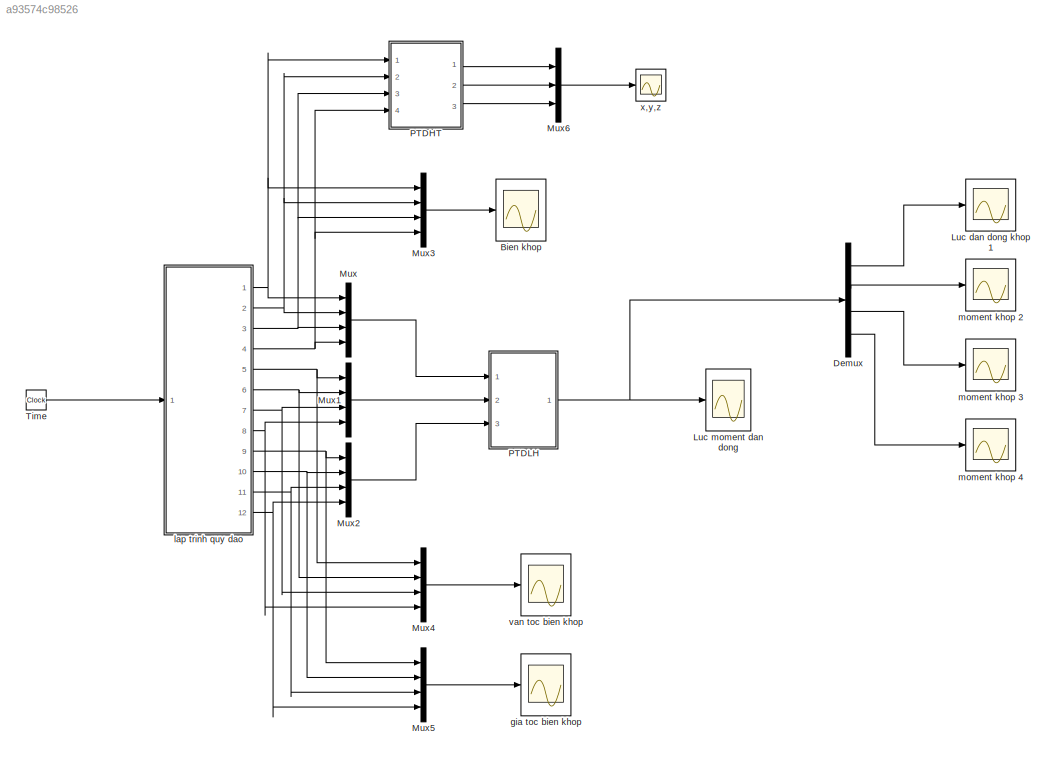
MODEL slx_a93574c98526
KIND model
CONFIG AbsTol = auto
CONFIG EnableMultiTasking = off
CONFIG FixedStep = auto
CONFIG MaxStep = auto
CONFIG MinStep = auto
CONFIG RelTol = 1e-3
CONFIG SampleTimeConstraint = Unconstrained
CONFIG Solver = VariableStepAuto
CONFIG SolverName = VariableStepAuto
CONFIG StartTime = 0.0
CONFIG StopTime = 10.0
BLOCK [Scope] Bien khop
  Floating = off
  NumInputPorts = 1
  Ports = [1]
  ScopeSpecificationString = Simulink.scopes.TimeScopeBlockCfg('CurrentConfiguration', extmgr.ConfigurationSet(extmgr.Configuration('Core','General UI',true,'FigureColor',[0.941176470588235 0.941176470588235 0.941176470588235]),extmgr.Configuration('Core','Source UI',true),extmgr.Configuration('Sources','WiredSimulink',true,'DataLoggingVariableName','ScopeData1'),extmgr.Configuration('Visuals','Time Domain',true,'SerializedDi...<+2045ch>
BLOCK [Demux] Demux
  Ports = [1, 4]
BLOCK [Scope] Luc dan dong khop 1 
  Floating = off
  NumInputPorts = 1
  Ports = [1]
  ScopeSpecificationString = Simulink.scopes.TimeScopeBlockCfg('CurrentConfiguration', extmgr.ConfigurationSet(extmgr.Configuration('Core','General UI',true,'FigureColor',[0.941176470588235 0.941176470588235 0.941176470588235]),extmgr.Configuration('Core','Source UI',true),extmgr.Configuration('Sources','WiredSimulink',true,'DataLoggingVariableName','ScopeData4'),extmgr.Configuration('Visuals','Time Domain',true,'SerializedDi...<+1551ch>
BLOCK [Scope] Luc moment dan dong
  Floating = off
  NumInputPorts = 1
  Ports = [1]
  ScopeSpecificationString = Simulink.scopes.TimeScopeBlockCfg('CurrentConfiguration', extmgr.ConfigurationSet(extmgr.Configuration('Core','General UI',true,'FigureColor',[0.941176470588235 0.941176470588235 0.941176470588235]),extmgr.Configuration('Core','Source UI',true),extmgr.Configuration('Sources','WiredSimulink',true),extmgr.Configuration('Visuals','Time Domain',true,'SerializedDisplays',{struct('MinYLimReal','-41.8188...<+2064ch>
BLOCK [Mux] Mux
  DisplayOption = bar
  Ports = [4, 1]
BLOCK [Mux] Mux1
  DisplayOption = bar
  Ports = [4, 1]
BLOCK [Mux] Mux2
  DisplayOption = bar
  Ports = [4, 1]
BLOCK [Mux] Mux3
  DisplayOption = bar
  Ports = [4, 1]
BLOCK [Mux] Mux4
  DisplayOption = bar
  Ports = [4, 1]
BLOCK [Mux] Mux5
  DisplayOption = bar
  Ports = [4, 1]
BLOCK [Mux] Mux6
  DisplayOption = bar
  Inputs = 3
  Ports = [3, 1]
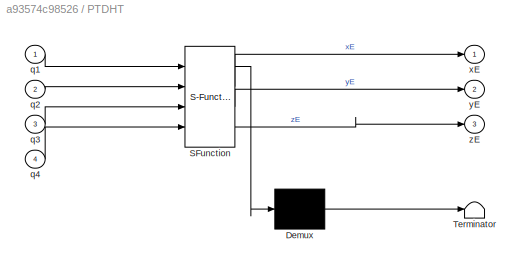
BLOCK [SubSystem] PTDHT
  ErrorFcn = Stateflow.Translate.translate
  PermitHierarchicalResolution = ExplicitOnly
  Ports = [4, 3]
  RequestExecContextInheritance = off
  SFBlockType = MATLAB Function
  TreatAsAtomicUnit = on
BLOCK [Demux] PTDHT/ Demux 
  Outputs = 1
  Ports = [1, 1]
BLOCK [S-Function] PTDHT/ SFunction 
  EnableBusSupport = on
  FunctionName = sf_sfun
  PortCounts = [4 4]
  Ports = [4, 4]
  SFcnIsStateOwnerBlock = off
  SFunctionDeploymentMode = off
  Tag = Stateflow S-Function 3
BLOCK [Terminator] PTDHT/ Terminator 
BLOCK [Inport] PTDHT/q1
BLOCK [Inport] PTDHT/q2
  Port = 2
BLOCK [Inport] PTDHT/q3
  Port = 3
BLOCK [Inport] PTDHT/q4
  Port = 4
BLOCK [Outport] PTDHT/xE
BLOCK [Outport] PTDHT/yE
  Port = 2
BLOCK [Outport] PTDHT/zE
  Port = 3
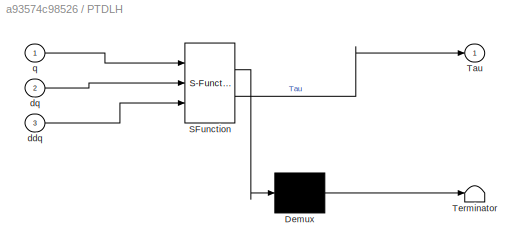
BLOCK [SubSystem] PTDLH
  ErrorFcn = Stateflow.Translate.translate
  PermitHierarchicalResolution = ExplicitOnly
  Ports = [3, 1]
  RequestExecContextInheritance = off
  SFBlockType = MATLAB Function
  TreatAsAtomicUnit = on
BLOCK [Demux] PTDLH/ Demux 
  Outputs = 1
  Ports = [1, 1]
BLOCK [S-Function] PTDLH/ SFunction 
  EnableBusSupport = on
  FunctionName = sf_sfun
  PortCounts = [3 2]
  Ports = [3, 2]
  SFcnIsStateOwnerBlock = off
  SFunctionDeploymentMode = off
  Tag = Stateflow S-Function 1
BLOCK [Terminator] PTDLH/ Terminator 
BLOCK [Outport] PTDLH/Tau
BLOCK [Inport] PTDLH/ddq
  Port = 3
BLOCK [Inport] PTDLH/dq
  Port = 2
BLOCK [Inport] PTDLH/q
BLOCK [Clock] Time 
BLOCK [Scope] gia toc bien khop
  Floating = off
  NumInputPorts = 1
  Ports = [1]
  ScopeSpecificationString = Simulink.scopes.TimeScopeBlockCfg('CurrentConfiguration', extmgr.ConfigurationSet(extmgr.Configuration('Core','General UI',true,'FigureColor',[0.941176470588235 0.941176470588235 0.941176470588235]),extmgr.Configuration('Core','Source UI',true),extmgr.Configuration('Sources','WiredSimulink',true,'DataLoggingVariableName','ScopeData3'),extmgr.Configuration('Visuals','Time Domain',true,'SerializedDi...<+2099ch>
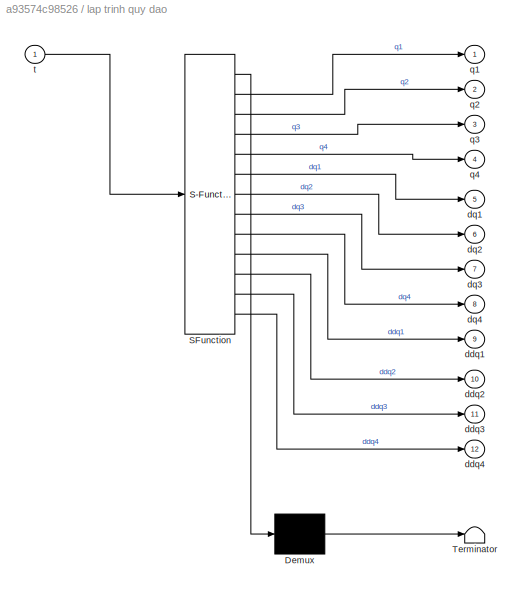
BLOCK [SubSystem] lap trinh quy dao
  ErrorFcn = Stateflow.Translate.translate
  PermitHierarchicalResolution = ExplicitOnly
  Ports = [1, 12]
  RequestExecContextInheritance = off
  SFBlockType = MATLAB Function
  TreatAsAtomicUnit = on
BLOCK [Demux] lap trinh quy dao/ Demux 
  Outputs = 1
  Ports = [1, 1]
BLOCK [S-Function] lap trinh quy dao/ SFunction 
  EnableBusSupport = on
  FunctionName = sf_sfun
  PortCounts = [1 13]
  Ports = [1, 13]
  SFcnIsStateOwnerBlock = off
  SFunctionDeploymentMode = off
  Tag = Stateflow S-Function 2
BLOCK [Terminator] lap trinh quy dao/ Terminator 
BLOCK [Outport] lap trinh quy dao/ddq1
  Port = 9
BLOCK [Outport] lap trinh quy dao/ddq2
  Port = 10
BLOCK [Outport] lap trinh quy dao/ddq3
  Port = 11
BLOCK [Outport] lap trinh quy dao/ddq4
  Port = 12
BLOCK [Outport] lap trinh quy dao/dq1
  Port = 5
BLOCK [Outport] lap trinh quy dao/dq2
  Port = 6
BLOCK [Outport] lap trinh quy dao/dq3
  Port = 7
BLOCK [Outport] lap trinh quy dao/dq4
  Port = 8
BLOCK [Outport] lap trinh quy dao/q1
BLOCK [Outport] lap trinh quy dao/q2
  Port = 2
BLOCK [Outport] lap trinh quy dao/q3
  Port = 3
BLOCK [Outport] lap trinh quy dao/q4
  Port = 4
BLOCK [Inport] lap trinh quy dao/t
BLOCK [Scope] moment khop 2
  Floating = off
  NumInputPorts = 1
  Ports = [1]
  ScopeSpecificationString = Simulink.scopes.TimeScopeBlockCfg('CurrentConfiguration', extmgr.ConfigurationSet(extmgr.Configuration('Core','General UI',true,'FigureColor',[0.941176470588235 0.941176470588235 0.941176470588235]),extmgr.Configuration('Core','Source UI',true),extmgr.Configuration('Sources','WiredSimulink',true,'DataLoggingVariableName','ScopeData5'),extmgr.Configuration('Visuals','Time Domain',true,'SerializedDi...<+1551ch>
BLOCK [Scope] moment khop 3
  Floating = off
  NumInputPorts = 1
  Ports = [1]
  ScopeSpecificationString = Simulink.scopes.TimeScopeBlockCfg('CurrentConfiguration', extmgr.ConfigurationSet(extmgr.Configuration('Core','General UI',true,'FigureColor',[0.941176470588235 0.941176470588235 0.941176470588235]),extmgr.Configuration('Core','Source UI',true),extmgr.Configuration('Sources','WiredSimulink',true,'DataLoggingVariableName','ScopeData7'),extmgr.Configuration('Visuals','Time Domain',true,'SerializedDi...<+1557ch>
BLOCK [Scope] moment khop 4
  Floating = off
  NumInputPorts = 1
  Ports = [1]
  ScopeSpecificationString = Simulink.scopes.TimeScopeBlockCfg('CurrentConfiguration', extmgr.ConfigurationSet(extmgr.Configuration('Core','General UI',true,'FigureColor',[0.941176470588235 0.941176470588235 0.941176470588235]),extmgr.Configuration('Core','Source UI',true),extmgr.Configuration('Sources','WiredSimulink',true,'DataLoggingVariableName','ScopeData6'),extmgr.Configuration('Visuals','Time Domain',true,'SerializedDi...<+1551ch>
BLOCK [Scope] van toc bien khop 
  Floating = off
  NumInputPorts = 1
  Ports = [1]
  ScopeSpecificationString = Simulink.scopes.TimeScopeBlockCfg('CurrentConfiguration', extmgr.ConfigurationSet(extmgr.Configuration('Core','General UI',true,'FigureColor',[0.941176470588235 0.941176470588235 0.941176470588235]),extmgr.Configuration('Core','Source UI',true),extmgr.Configuration('Sources','WiredSimulink',true,'DataLoggingVariableName','ScopeData2'),extmgr.Configuration('Visuals','Time Domain',true,'SerializedDi...<+2089ch>
BLOCK [Scope] x,y,z
  Floating = off
  NumInputPorts = 1
  Ports = [1]
  ScopeSpecificationString = Simulink.scopes.TimeScopeBlockCfg('CurrentConfiguration', extmgr.ConfigurationSet(extmgr.Configuration('Core','General UI',true,'FigureColor',[0.941176470588235 0.941176470588235 0.941176470588235]),extmgr.Configuration('Core','Source UI',true),extmgr.Configuration('Sources','WiredSimulink',true,'DataLoggingVariableName','ScopeData8'),extmgr.Configuration('Visuals','Time Domain',true,'SerializedDi...<+1863ch>
LINE Demux:1 -> Luc dan dong khop 1 :1
LINE Demux:2 -> moment khop 2:1
LINE Demux:3 -> moment khop 3:1
LINE Demux:4 -> moment khop 4:1
LINE Mux1:1 -> PTDLH:2
LINE Mux2:1 -> PTDLH:3
LINE Mux3:1 -> Bien khop:1
LINE Mux4:1 -> van toc bien khop :1
LINE Mux5:1 -> gia toc bien khop:1
LINE Mux6:1 -> x,y,z:1
LINE Mux:1 -> PTDLH:1
LINE PTDHT:1 -> Mux6:1
LINE PTDHT:2 -> Mux6:2
LINE PTDHT:3 -> Mux6:3
NET PTDLH:1 -> Demux:1, Luc moment dan dong:1
LINE Time :1 -> lap trinh quy dao:1
NET lap trinh quy dao:1 -> Mux3:1, Mux:1, PTDHT:1
NET lap trinh quy dao:10 -> Mux2:2, Mux5:2
NET lap trinh quy dao:11 -> Mux2:3, Mux5:3
NET lap trinh quy dao:12 -> Mux2:4, Mux5:4
NET lap trinh quy dao:2 -> Mux3:2, Mux:2, PTDHT:2
NET lap trinh quy dao:3 -> Mux3:3, Mux:3, PTDHT:3
NET lap trinh quy dao:4 -> Mux3:4, Mux:4, PTDHT:4
NET lap trinh quy dao:5 -> Mux1:1, Mux4:1
NET lap trinh quy dao:6 -> Mux1:2, Mux4:2
NET lap trinh quy dao:7 -> Mux1:3, Mux4:3
NET lap trinh quy dao:8 -> Mux1:4, Mux4:4
NET lap trinh quy dao:9 -> Mux2:1, Mux5:1
note: NET lines group one-source signal fan-out (src -> all destinations, sorted); 1:1 wires keep LINE
CHART PTDLH states=1 transitions=1
  STATE_LABEL 'eML_blk_kernel()'
  STATE_LABEL 'SCRIPT:\nfunction Tau = fcn(q,dq,ddq)\n\n[L1, L2, L3, L4,L0,m1,m2,m3,m4,I1x,I1y,I1z,I2x,I2y,I2z,I3x,I3y,I3z,I4x,I4y,I4z]=Parameters();\n\nM=zeros(4,4);\nM(1,1)= m1 + m2 + m3 + m4;\nM(1,2)= ((-0.3e1 * m4 * L4 * cos(q(4)) - 0.3e1 * L3 * (m3 + 0.2e1 / 0.3e1 * m4)) * cos(q(3)) + 0.3e1 * sin(q(3)) * sin(q(4)) * L4 * m4 - 0.3e1 * L2 * (m2 + 0.2e1 / 0.3e1 * m3 + 0.2e1 / 0.3e1 * m4)) * cos(q(2)) / 0.2e1 + 0.3e1 ...<+3608ch>'
CHART lap trinh quy dao states=1 transitions=1
  STATE_LABEL 'eML_blk_kernel()'
  STATE_LABEL 'SCRIPT:\nfunction [q1,q2,q3,q4,dq1,dq2,dq3,dq4,ddq1,ddq2,ddq3,ddq4] = fcn(t)\n%khai bao vi tri bien khop\nq1=0.2+(0.9/100)*t^2-(0.3/500)*t^3;\nq2=pi/3+(pi/200)*t^2-(pi/3000)*t^3;\nq3=-pi/6+(3*pi/200)*t^2-(pi/1000)*t^3;\nq4=pi/6+(pi/100)*t^2-(pi/1500)*t^3;\n%khai bao van toc bien khop\ndq1=(1.8/100)*t-(0.9/500)*t^2;\ndq2=(pi/100)*t-(pi/1000)*t^2;\ndq3=(3*pi/100)*t-(3*pi/1000)*t^2;\ndq4=(pi/50)*t-(pi/500)*t^2;...<+129ch>'
CHART PTDHT states=1 transitions=1
  STATE_LABEL 'eML_blk_kernel()'
  STATE_LABEL 'SCRIPT:\nfunction [xE,yE,zE] = fcn(q1,q2,q3,q4)\nL1 = 0.1;\nL2 = 0.4;\nL3 = 0.3;\nL4 = 0.3;\nxE = 0;\nyE = (-sin(q2) * cos(q3) - cos(q2) * sin(q3)) * L4 * cos(q4) + (sin(q2) * sin(q3) - cos(q2) * cos(q3)) * L4 * sin(q4) - sin(q2) * L3 * cos(q3) - cos(q2) * L3 * sin(q3) - L2 * sin(q2);\nzE = (cos(q2) * cos(q3) - sin(q2) * sin(q3)) * L4 * cos(q4) + (-sin(q2) * cos(q3) - cos(q2) * sin(q3)) * L4 * sin(q4) + c...<+78ch>'
CHART  states=0 transitions=0
CHART  states=0 transitions=0
CHART  states=0 transitions=0
